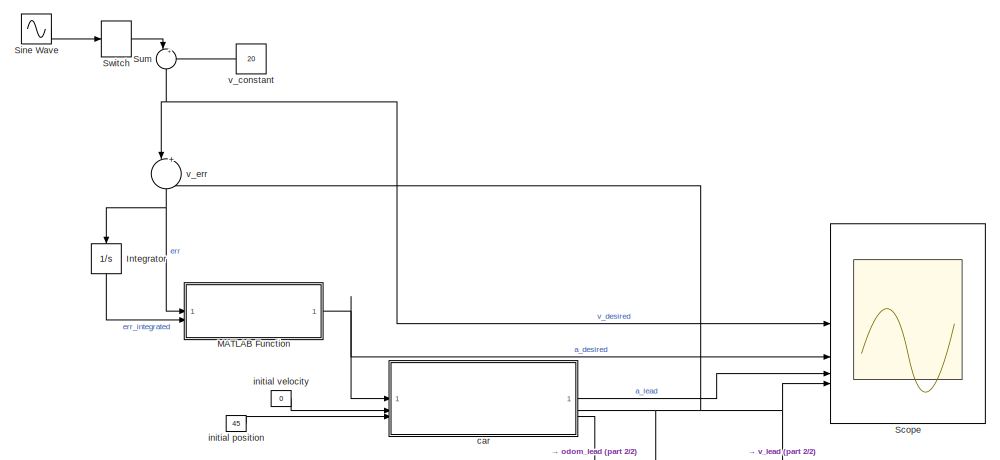
[diagram: root canvas - part 1/2, full width, top band]
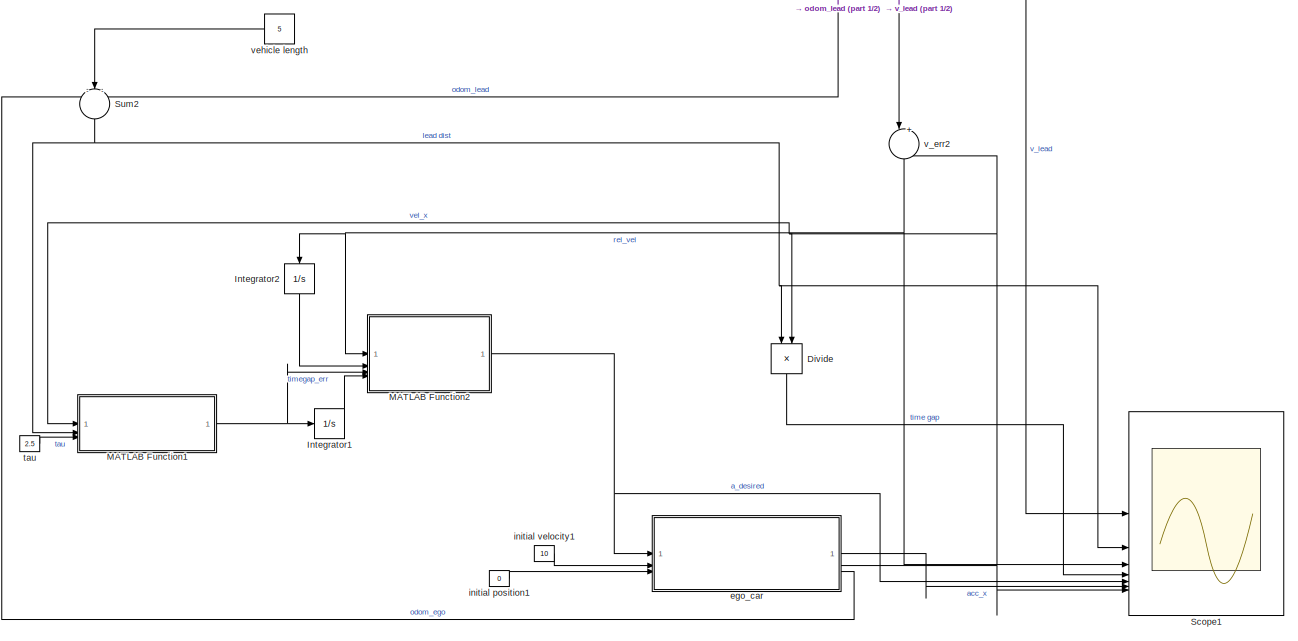
[diagram: root canvas - part 2/2, full width, bottom band]
MODEL slx_6d440e49a0c9
KIND model
CONFIG AbsTol = auto
CONFIG EnableMultiTasking = off
CONFIG FixedStep = auto
CONFIG MaxStep = auto
CONFIG MinStep = auto
CONFIG RelTol = 1e-3
CONFIG SampleTimeConstraint = Unconstrained
CONFIG SolverName = VariableStepAuto
CONFIG StartTime = 0.0
CONFIG StopTime = 200
BLOCK [Product] Divide
  Inputs = */
  NameLocation = left
BLOCK [Integrator] Integrator
  NameLocation = left
BLOCK [Integrator] Integrator1
BLOCK [Integrator] Integrator2
  NameLocation = left
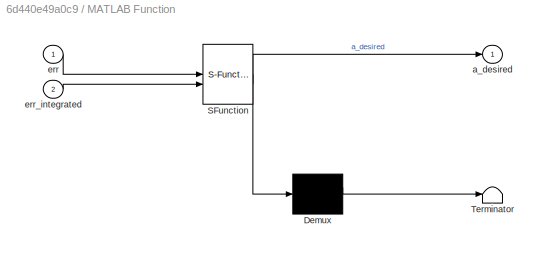
BLOCK [SubSystem] MATLAB Function
  ErrorFcn = Stateflow.Translate.translate
  PermitHierarchicalResolution = ExplicitOnly
  SFBlockType = MATLAB Function
  TreatAsAtomicUnit = on
BLOCK [Demux] MATLAB Function/ Demux 
  Outputs = 1
BLOCK [S-Function] MATLAB Function/ SFunction 
  EnableBusSupport = on
  FunctionName = sf_sfun
  PortCounts = [2 2]
  SFcnIsStateOwnerBlock = off
  SFunctionDeploymentMode = off
  Tag = Stateflow S-Function 2
BLOCK [Terminator] MATLAB Function/ Terminator 
BLOCK [Outport] MATLAB Function/a_desired
BLOCK [Inport] MATLAB Function/err
BLOCK [Inport] MATLAB Function/err_integrated
  Port = 2
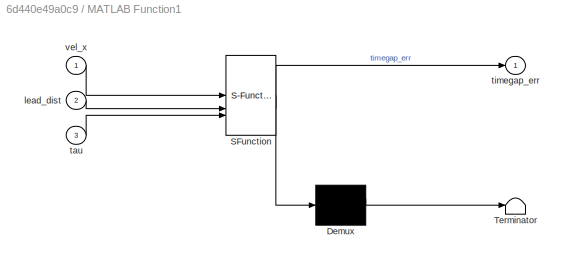
BLOCK [SubSystem] MATLAB Function1
  ErrorFcn = Stateflow.Translate.translate
  PermitHierarchicalResolution = ExplicitOnly
  SFBlockType = MATLAB Function
  TreatAsAtomicUnit = on
BLOCK [Demux] MATLAB Function1/ Demux 
  Outputs = 1
BLOCK [S-Function] MATLAB Function1/ SFunction 
  EnableBusSupport = on
  FunctionName = sf_sfun
  PortCounts = [3 2]
  SFcnIsStateOwnerBlock = off
  SFunctionDeploymentMode = off
  Tag = Stateflow S-Function 1
BLOCK [Terminator] MATLAB Function1/ Terminator 
BLOCK [Inport] MATLAB Function1/lead_dist
  Port = 2
BLOCK [Inport] MATLAB Function1/tau
  Port = 3
BLOCK [Outport] MATLAB Function1/timegap_err
BLOCK [Inport] MATLAB Function1/vel_x
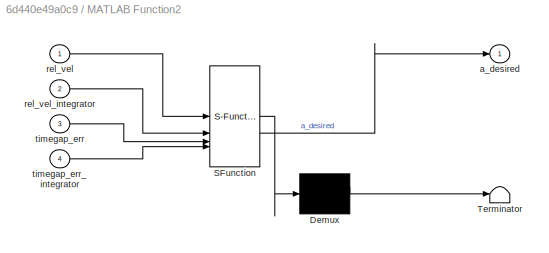
BLOCK [SubSystem] MATLAB Function2
  ErrorFcn = Stateflow.Translate.translate
  PermitHierarchicalResolution = ExplicitOnly
  SFBlockType = MATLAB Function
  TreatAsAtomicUnit = on
BLOCK [Demux] MATLAB Function2/ Demux 
  Outputs = 1
BLOCK [S-Function] MATLAB Function2/ SFunction 
  EnableBusSupport = on
  FunctionName = sf_sfun
  PortCounts = [4 2]
  SFcnIsStateOwnerBlock = off
  SFunctionDeploymentMode = off
  Tag = Stateflow S-Function 3
BLOCK [Terminator] MATLAB Function2/ Terminator 
BLOCK [Outport] MATLAB Function2/a_desired
BLOCK [Inport] MATLAB Function2/rel_vel
BLOCK [Inport] MATLAB Function2/rel_vel_integrator
  Port = 2
BLOCK [Inport] MATLAB Function2/timegap_err
  Port = 3
BLOCK [Inport] MATLAB Function2/timegap_err_integrator
  Port = 4
BLOCK [Scope] Scope
  Floating = off
  NumInputPorts = 4
  ScopeSpecificationString = Simulink.scopes.TimeScopeBlockCfg('CurrentConfiguration', extmgr.ConfigurationSet(extmgr.Configuration('Core','General UI',true),extmgr.Configuration('Core','Source UI',true),extmgr.Configuration('Sources','WiredSimulink',true,'DataLoggingVariableName','ScopeData1'),extmgr.Configuration('Visuals','Time Domain',true,'SerializedDisplays',{struct('MinYLimReal','-5.45368','MaxYLimReal','25.21033','YLa...<+1655ch>
BLOCK [Scope] Scope1
  Floating = off
  NumInputPorts = 7
  ScopeSpecificationString = Simulink.scopes.TimeScopeBlockCfg('CurrentConfiguration', extmgr.ConfigurationSet(extmgr.Configuration('Core','General UI',true),extmgr.Configuration('Core','Source UI',true),extmgr.Configuration('Sources','WiredSimulink',true),extmgr.Configuration('Visuals','Time Domain',true,'SerializedDisplays',{struct('MinYLimReal','-18.8123','MaxYLimReal','108.88397','YLabelReal','','MinYLimMag','0.00000','Ma...<+2083ch>
BLOCK [Sin] Sine Wave
  Amplitude = 5
  SampleTime = 0
BLOCK [Sum] Sum
  Inputs = |++
  NameLocation = left
BLOCK [Sum] Sum2
  Inputs = -|-+
  NameLocation = left
BLOCK [ManualSwitch] Switch
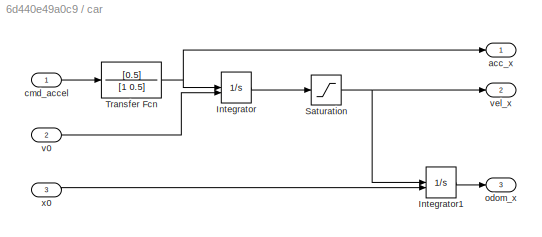
BLOCK [SubSystem] car
BLOCK [Integrator] car/Integrator
  InitialConditionSource = external
BLOCK [Integrator] car/Integrator1
  InitialConditionSource = external
BLOCK [Saturate] car/Saturation
  LowerLimit = 0
  UpperLimit = 80
BLOCK [TransferFcn] car/Transfer Fcn
  Denominator = [1 0.5]
  Numerator = [0.5]
BLOCK [Outport] car/acc_x
BLOCK [Inport] car/cmd_accel
BLOCK [Outport] car/odom_x
  Port = 3
BLOCK [Inport] car/v0
  Port = 2
BLOCK [Outport] car/vel_x
  Port = 2
BLOCK [Inport] car/x0
  Port = 3
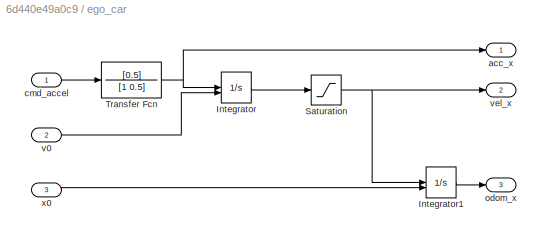
BLOCK [SubSystem] ego_car
BLOCK [Integrator] ego_car/Integrator
  InitialConditionSource = external
BLOCK [Integrator] ego_car/Integrator1
  InitialConditionSource = external
BLOCK [Saturate] ego_car/Saturation
  LowerLimit = 0
  UpperLimit = 80
BLOCK [TransferFcn] ego_car/Transfer Fcn
  Denominator = [1 0.5]
  Numerator = [0.5]
BLOCK [Outport] ego_car/acc_x
BLOCK [Inport] ego_car/cmd_accel
BLOCK [Outport] ego_car/odom_x
  Port = 3
BLOCK [Inport] ego_car/v0
  Port = 2
BLOCK [Outport] ego_car/vel_x
  Port = 2
BLOCK [Inport] ego_car/x0
  Port = 3
BLOCK [Constant] initial position
  Value = 45
BLOCK [Constant] initial position1
  Value = 0
BLOCK [Constant] initial velocity
  Value = 0
BLOCK [Constant] initial velocity1
  Value = 10
BLOCK [Constant] tau
  Value = 2.5
BLOCK [Constant] v_constant
  NameLocation = top
  Value = 20
BLOCK [Sum] v_err
  Inputs = |+-
  NameLocation = left
BLOCK [Sum] v_err2
  Inputs = |+-
  NameLocation = left
BLOCK [Constant] vehicle length
  NameLocation = top
  Value = 5
LINE Divide:1 -> Scope1:4
LINE Integrator1:1 -> MATLAB Function2:4
LINE Integrator2:1 -> MATLAB Function2:2
LINE Integrator:1 -> MATLAB Function:2
NET MATLAB Function1:1 -> Integrator1:1, MATLAB Function2:3
NET MATLAB Function2:1 -> Scope1:5, ego_car:1
NET MATLAB Function:1 -> Scope:2, car:1
LINE Sine Wave:1 -> Switch:1
NET Sum2:1 -> Divide:1, MATLAB Function1:2, Scope1:2
NET Sum:1 -> Scope:1, v_err:1
LINE Switch:1 -> Sum:1
LINE car/Integrator1:1 -> car/odom_x:1
LINE car/Integrator:1 -> car/Saturation:1
NET car/Saturation:1 -> car/Integrator1:1, car/vel_x:1
NET car/Transfer Fcn:1 -> car/Integrator:1, car/acc_x:1
LINE car/cmd_accel:1 -> car/Transfer Fcn:1
LINE car/v0:1 -> car/Integrator:2
LINE car/x0:1 -> car/Integrator1:2
LINE car:1 -> Scope:3
NET car:2 -> Scope1:1, Scope:4, v_err2:1, v_err:2
LINE car:3 -> Sum2:3
LINE ego_car/Integrator1:1 -> ego_car/odom_x:1
LINE ego_car/Integrator:1 -> ego_car/Saturation:1
NET ego_car/Saturation:1 -> ego_car/Integrator1:1, ego_car/vel_x:1
NET ego_car/Transfer Fcn:1 -> ego_car/Integrator:1, ego_car/acc_x:1
LINE ego_car/cmd_accel:1 -> ego_car/Transfer Fcn:1
LINE ego_car/v0:1 -> ego_car/Integrator:2
LINE ego_car/x0:1 -> ego_car/Integrator1:2
LINE ego_car:1 -> Scope1:6
NET ego_car:2 -> Divide:2, MATLAB Function1:1, Scope1:7, v_err2:2
LINE ego_car:3 -> Sum2:1
LINE initial position1:1 -> ego_car:3
LINE initial position:1 -> car:3
LINE initial velocity1:1 -> ego_car:2
LINE initial velocity:1 -> car:2
LINE tau:1 -> MATLAB Function1:3
LINE v_constant:1 -> Sum:2
NET v_err2:1 -> Integrator2:1, MATLAB Function2:1, Scope1:3
NET v_err:1 -> Integrator:1, MATLAB Function:1
LINE vehicle length:1 -> Sum2:2
note: NET lines group one-source signal fan-out (src -> all destinations, sorted); 1:1 wires keep LINE
CHART MATLAB Function1 states=1 transitions=1
  STATE_LABEL 'eML_blk_kernel()'
  STATE_LABEL 'SCRIPT:\nfunction timegap_err = fcn(vel_x, lead_dist, tau)\n\ntimegap_err = (lead_dist-1)/tau - vel_x; % keep at least 1 meter as safety distance even if both vehicles stop'
CHART MATLAB Function states=1 transitions=1
  STATE_LABEL 'eML_blk_kernel()'
  STATE_LABEL 'SCRIPT:\nfunction a_desired = fcn(err, err_integrated)\na_desired = 0.3*err + 0.01*err_integrated;\n\nif a_desired>1.5\n    a_desired=1.5;\nelseif a_desired<-3\n    a_desired=-3\nend;'
CHART MATLAB Function2 states=1 transitions=1
  STATE_LABEL 'eML_blk_kernel()'
  STATE_LABEL 'SCRIPT:\nfunction a_desired = fcn(rel_vel, rel_vel_integrator, timegap_err, timegap_err_integrator)\n%delt_tau = 0.5;\n%tau_max = tau+delt_tau;\n%tau_min = tau-delt_tau;\n%time_gap = lead_dist/vel_x;\n\n%if time_gap<tau_max && time_gap>tau_min && rel_vel<2\n%    ratio = abs(time_gap-timegap_err)/delt_tau;\n%    a=a*(exp(ratio)-1)/(exp(1)-1);\n%end\n\nalpha1 = 0.8\nalpha2 = .5\n\na = alpha1*rel_vel + alpha2*timeg...<+208ch>'
CHART  states=0 transitions=0
CHART  states=0 transitions=0
CHART  states=0 transitions=0
